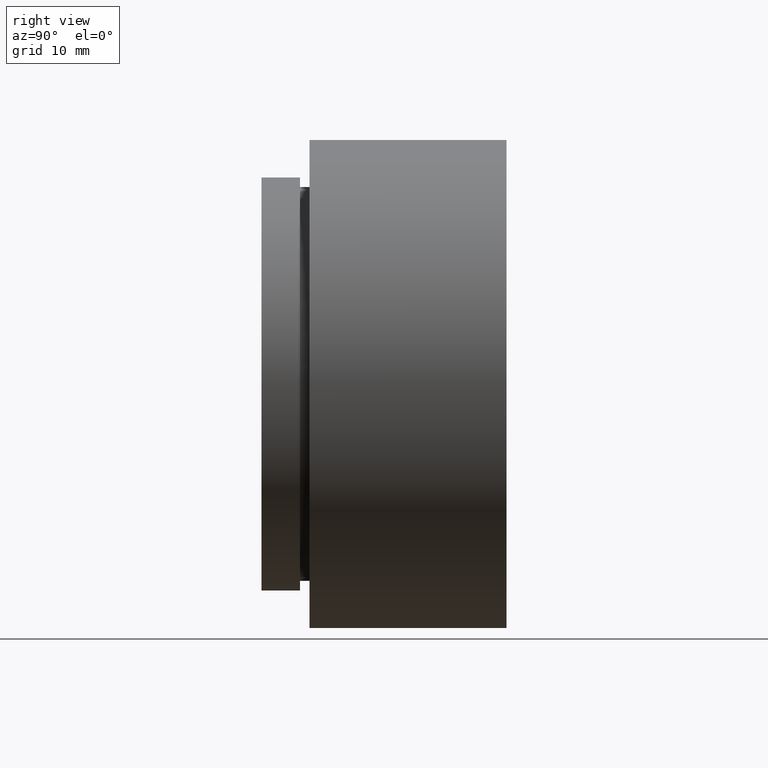
[diagram: clean part render]
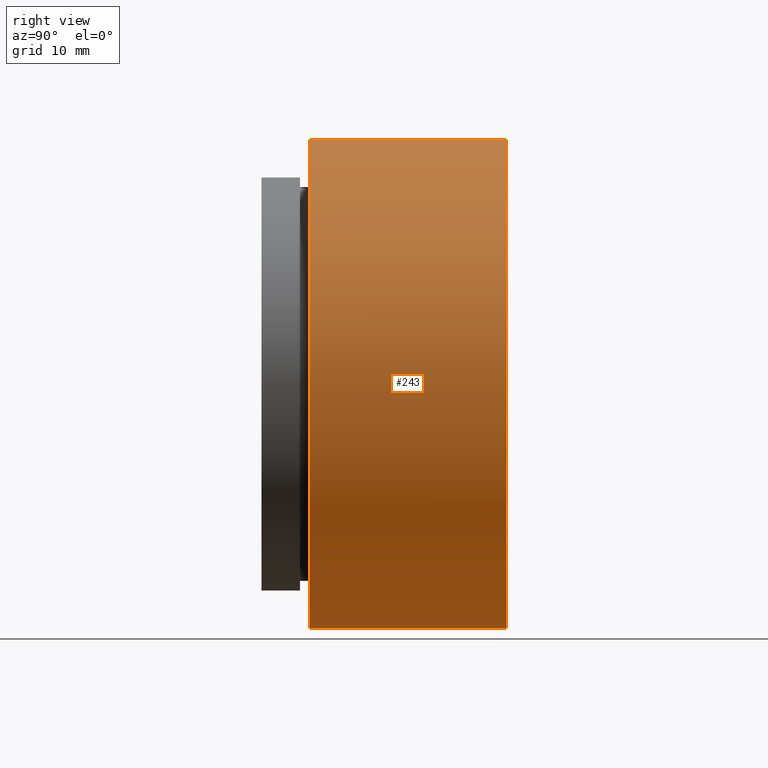
[diagram: same view with one face highlighted and labeled with its STEP entity id]
A machine part, right view. The second image highlights one B-rep face of the part: STEP entity #243.
In plain terms, the highlighted cylindrical surface (partial cylindrical patch) has radius 25.4 mm, axis along (0, -1, 0).
Its self-contained STEP definition (entity closure, byte-faithful):
#45 = VERTEX_POINT ( 'NONE', #249 ) ;
#58 = DIRECTION ( 'NONE',  ( 0.000000000000000000, -1.000000000000000000, 0.000000000000000000 ) ) ;
#139 = VERTEX_POINT ( 'NONE', #543 ) ;
#157 = CARTESIAN_POINT ( 'NONE',  ( -8.905217641199635992, -24.96199424963321079, 26.65036394347448123 ) ) ;
#191 = ORIENTED_EDGE ( 'NONE', *, *, #1055, .T. ) ;
#218 = CARTESIAN_POINT ( 'NONE',  ( -8.905217641199635992, -29.96199424963321079, 1.250363943474483541 ) ) ;
#243 = ADVANCED_FACE ( 'NONE', ( #597 ), #470, .T. ) ;
#249 = CARTESIAN_POINT ( 'NONE',  ( -8.905217641199635992, -24.96199424963321079, 1.250363943474483541 ) ) ;
#256 = LINE ( 'NONE', #876, #766 ) ;
#327 = ORIENTED_EDGE ( 'NONE', *, *, #575, .F. ) ;
#470 = CYLINDRICAL_SURFACE ( 'NONE', #1252, 25.39999999999999858 ) ;
#471 = CARTESIAN_POINT ( 'NONE',  ( -8.905217641199635992, -4.461994249633213450, 1.250363943474483541 ) ) ;
#543 = CARTESIAN_POINT ( 'NONE',  ( -8.905217641199632439, -4.461994249633213450, 52.05036394347447981 ) ) ;
#575 = EDGE_CURVE ( 'NONE', #45, #1265, #1180, .T. ) ;
#597 = FACE_OUTER_BOUND ( 'NONE', #945, .T. ) ;
#619 = DIRECTION ( 'NONE',  ( 0.000000000000000000, -1.000000000000000000, 0.000000000000000000 ) ) ;
#690 = VECTOR ( 'NONE', #813, 1000.000000000000000 ) ;
#709 = CARTESIAN_POINT ( 'NONE',  ( -8.905217641199632439, -24.96199424963321079, 52.05036394347447981 ) ) ;
#721 = ORIENTED_EDGE ( 'NONE', *, *, #794, .F. ) ;
#729 = CIRCLE ( 'NONE', #911, 25.39999999999999858 ) ;
#766 = VECTOR ( 'NONE', #855, 1000.000000000000000 ) ;
#794 = EDGE_CURVE ( 'NONE', #986, #45, #1026, .T. ) ;
#807 = CARTESIAN_POINT ( 'NONE',  ( -8.905217641199635992, -4.461994249633213450, 26.65036394347448123 ) ) ;
#813 = DIRECTION ( 'NONE',  ( 0.000000000000000000, -1.000000000000000000, 0.000000000000000000 ) ) ;
#839 = EDGE_CURVE ( 'NONE', #986, #139, #729, .T. ) ;
#855 = DIRECTION ( 'NONE',  ( 0.000000000000000000, -1.000000000000000000, 0.000000000000000000 ) ) ;
#872 = DIRECTION ( 'NONE',  ( 0.000000000000000000, 0.000000000000000000, -1.000000000000000000 ) ) ;
#876 = CARTESIAN_POINT ( 'NONE',  ( -8.905217641199632439, -29.96199424963321079, 52.05036394347447981 ) ) ;
#880 = DIRECTION ( 'NONE',  ( 0.000000000000000000, -1.000000000000000000, 0.000000000000000000 ) ) ;
#910 = DIRECTION ( 'NONE',  ( 0.000000000000000000, 0.000000000000000000, -1.000000000000000000 ) ) ;
#911 = AXIS2_PLACEMENT_3D ( 'NONE', #807, #619, #910 ) ;
#929 = ORIENTED_EDGE ( 'NONE', *, *, #839, .T. ) ;
#945 = EDGE_LOOP ( 'NONE', ( #929, #191, #327, #721 ) ) ;
#986 = VERTEX_POINT ( 'NONE', #471 ) ;
#1001 = CARTESIAN_POINT ( 'NONE',  ( -8.905217641199635992, -29.96199424963321079, 26.65036394347448123 ) ) ;
#1026 = LINE ( 'NONE', #218, #690 ) ;
#1055 = EDGE_CURVE ( 'NONE', #139, #1265, #256, .T. ) ;
#1116 = AXIS2_PLACEMENT_3D ( 'NONE', #157, #58, #1247 ) ;
#1180 = CIRCLE ( 'NONE', #1116, 25.39999999999999858 ) ;
#1247 = DIRECTION ( 'NONE',  ( 0.000000000000000000, 0.000000000000000000, -1.000000000000000000 ) ) ;
#1252 = AXIS2_PLACEMENT_3D ( 'NONE', #1001, #880, #872 ) ;
#1265 = VERTEX_POINT ( 'NONE', #709 ) ;